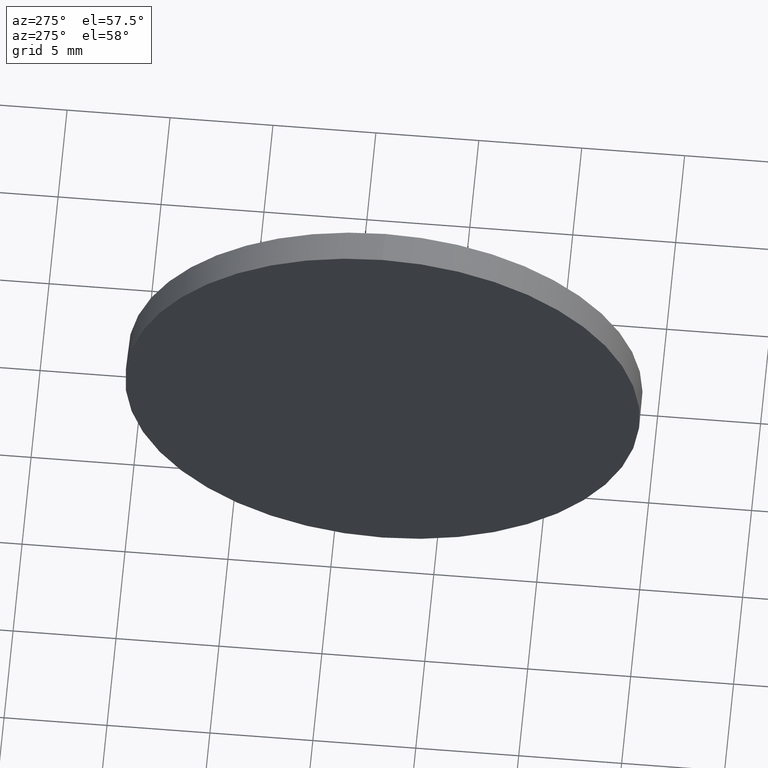
[diagram: clean part render]
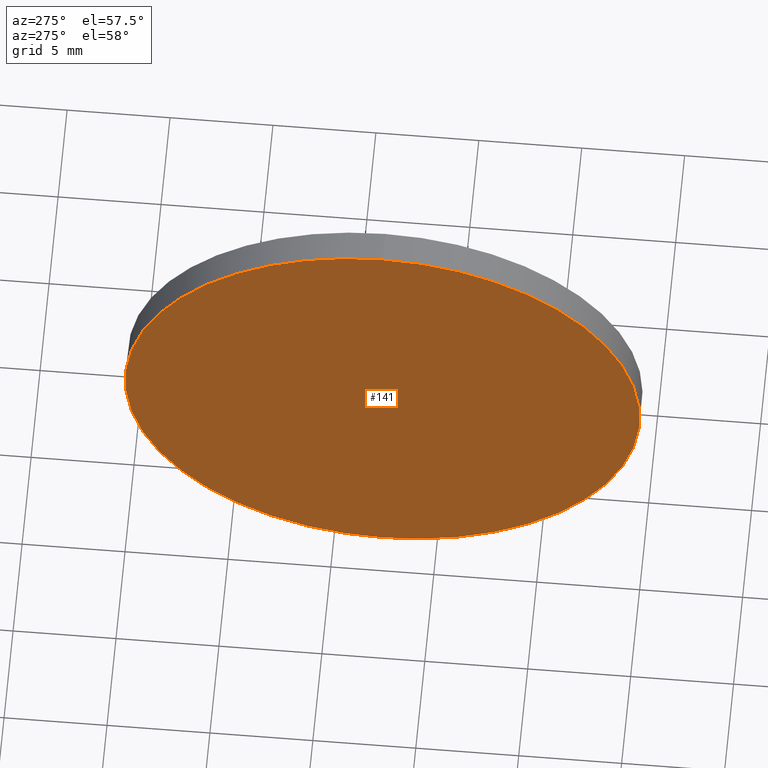
[diagram: same view with one face highlighted and labeled with its STEP entity id]
A machine part, auxiliary view. The second image highlights one B-rep face of the part: STEP entity #141.
In plain terms, the highlighted planar face has unit normal (1, 0, 0).
Its self-contained STEP definition (entity closure, byte-faithful):
#6 = CARTESIAN_POINT ( 'NONE',  ( 56.56002426272561900, 32.62964536423902500, 0.0000000000000000000 ) ) ;
#12 = FACE_OUTER_BOUND ( 'NONE', #54, .T. ) ;
#13 = EDGE_CURVE ( 'NONE', #128, #45, #132, .T. ) ;
#22 = CARTESIAN_POINT ( 'NONE',  ( 56.56002426272561900, 32.62964536423902500, 0.0000000000000000000 ) ) ;
#40 = ORIENTED_EDGE ( 'NONE', *, *, #171, .T. ) ;
#45 = VERTEX_POINT ( 'NONE', #131 ) ;
#49 = AXIS2_PLACEMENT_3D ( 'NONE', #6, #64, #161 ) ;
#51 = PLANE ( 'NONE',  #49 ) ;
#54 = EDGE_LOOP ( 'NONE', ( #40, #139 ) ) ;
#64 = DIRECTION ( 'NONE',  ( 1.000000000000000000, 0.0000000000000000000, 0.0000000000000000000 ) ) ;
#83 = DIRECTION ( 'NONE',  ( 0.0000000000000000000, 0.0000000000000000000, 1.000000000000000000 ) ) ;
#87 = DIRECTION ( 'NONE',  ( -1.000000000000000000, -0.0000000000000000000, -0.0000000000000000000 ) ) ;
#97 = CARTESIAN_POINT ( 'NONE',  ( 56.56002426272561900, 32.62964536423902500, 0.0000000000000000000 ) ) ;
#111 = DIRECTION ( 'NONE',  ( -1.000000000000000000, -0.0000000000000000000, -0.0000000000000000000 ) ) ;
#128 = VERTEX_POINT ( 'NONE', #147 ) ;
#131 = CARTESIAN_POINT ( 'NONE',  ( 56.56002426272561900, 32.62964536423902500, 12.49999999999999600 ) ) ;
#132 = CIRCLE ( 'NONE', #174, 12.49999999999999600 ) ;
#139 = ORIENTED_EDGE ( 'NONE', *, *, #13, .T. ) ;
#141 = ADVANCED_FACE ( 'NONE', ( #12 ), #51, .F. ) ;
#147 = CARTESIAN_POINT ( 'NONE',  ( 56.56002426272561900, 32.62964536423902500, -12.49999999999999600 ) ) ;
#153 = DIRECTION ( 'NONE',  ( 0.0000000000000000000, 0.0000000000000000000, 1.000000000000000000 ) ) ;
#161 = DIRECTION ( 'NONE',  ( 0.0000000000000000000, 0.0000000000000000000, -1.000000000000000000 ) ) ;
#171 = EDGE_CURVE ( 'NONE', #45, #128, #180, .T. ) ;
#172 = AXIS2_PLACEMENT_3D ( 'NONE', #22, #87, #83 ) ;
#174 = AXIS2_PLACEMENT_3D ( 'NONE', #97, #111, #153 ) ;
#180 = CIRCLE ( 'NONE', #172, 12.49999999999999600 ) ;